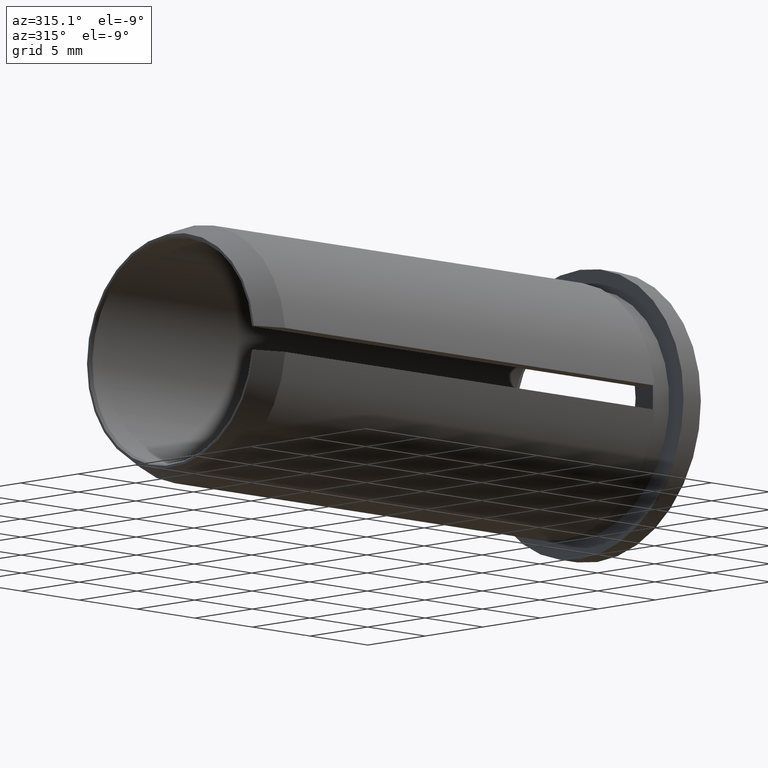
[diagram: clean part render]
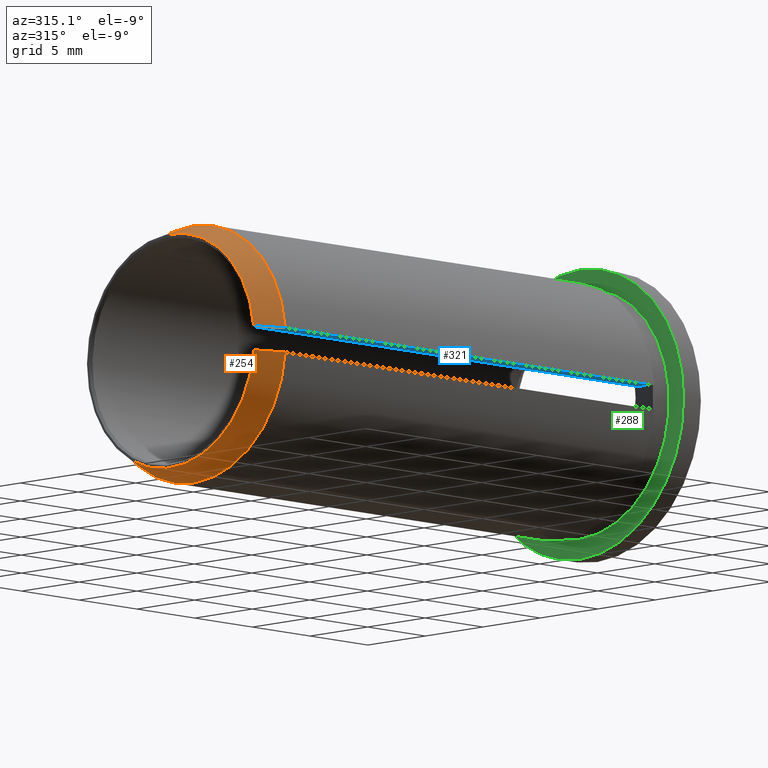
[diagram: same view with three faces highlighted in distinct colors, each labeled with its STEP entity id]
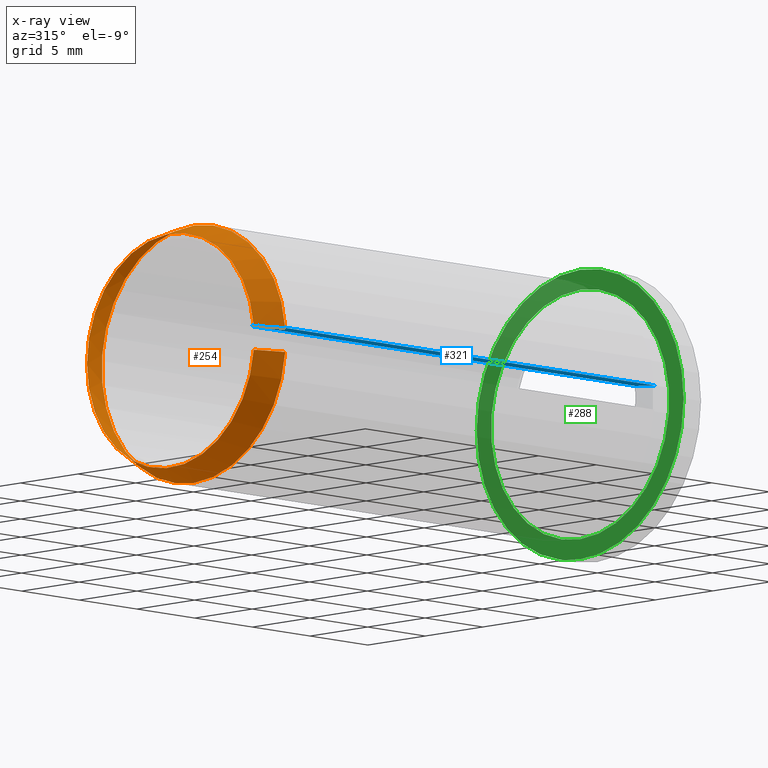
[diagram: x-ray of the same camera — body ghosted, the three highlighted faces saturated]
A machine part, auxiliary view with three faces highlighted in distinct colors.
The next image is the same camera in x-ray (body ghosted, the three faces saturated) — at least one of them is partly hidden behind the body in this view.
Their STEP definitions:

[orange] entity #254 — the highlighted conical surface has half-angle 20 deg.
#5 = ORIENTED_EDGE ( 'NONE', *, *, #322, .F. ) ;
#28 = CARTESIAN_POINT ( 'NONE',  ( -34.99999999999999300, -7.964766161036994400, -0.7500000000000000000 ) ) ;
#36 = AXIS2_PLACEMENT_3D ( 'NONE', #384, #129, #71 ) ;
#40 = VERTEX_POINT ( 'NONE', #174 ) ;
#66 = B_SPLINE_CURVE_WITH_KNOTS ( 'NONE', 3,
 ( #70, #75, #290, #315 ),
 .UNSPECIFIED., .F., .F.,
 ( 4, 4 ),
 ( 0.009711911398750116400, 0.01184148182100318500 ),
 .UNSPECIFIED. ) ;
#70 = CARTESIAN_POINT ( 'NONE',  ( -34.99999999999999300, -7.964766161036994400, 0.7500000000000000000 ) ) ;
#71 = DIRECTION ( 'NONE',  ( 0.0000000000000000000, 0.0000000000000000000, 1.000000000000000000 ) ) ;
#75 = CARTESIAN_POINT ( 'NONE',  ( -35.66670156923833400, -7.721033178614087300, 0.7500000000000000000 ) ) ;
#81 = AXIS2_PLACEMENT_3D ( 'NONE', #139, #253, #355 ) ;
#84 = CIRCLE ( 'NONE', #36, 7.272059531467589500 ) ;
#98 = CARTESIAN_POINT ( 'NONE',  ( -34.99999999999999300, -7.964766161036994400, 0.7500000000000000000 ) ) ;
#101 = EDGE_CURVE ( 'NONE', #40, #202, #316, .T. ) ;
#107 = ORIENTED_EDGE ( 'NONE', *, *, #101, .T. ) ;
#129 = DIRECTION ( 'NONE',  ( -1.000000000000000000, -0.0000000000000000000, -0.0000000000000000000 ) ) ;
#134 = CIRCLE ( 'NONE', #81, 7.999999999999996400 ) ;
#139 = CARTESIAN_POINT ( 'NONE',  ( -34.99999999999999300, 0.0000000000000000000, 0.0000000000000000000 ) ) ;
#150 = CARTESIAN_POINT ( 'NONE',  ( -37.00000000000000000, -7.233280709968928700, -0.7500000000000000000 ) ) ;
#152 = CARTESIAN_POINT ( 'NONE',  ( -37.00000000000000000, -7.233280709968928700, -0.7500000000000000000 ) ) ;
#164 = DIRECTION ( 'NONE',  ( 1.000000000000000000, 0.0000000000000000000, 0.0000000000000000000 ) ) ;
#173 = FACE_OUTER_BOUND ( 'NONE', #260, .T. ) ;
#174 = CARTESIAN_POINT ( 'NONE',  ( -34.99999999999999300, -7.964766161036994400, -0.7500000000000000000 ) ) ;
#202 = VERTEX_POINT ( 'NONE', #150 ) ;
#221 = EDGE_CURVE ( 'NONE', #359, #40, #134, .T. ) ;
#225 = ORIENTED_EDGE ( 'NONE', *, *, #277, .F. ) ;
#234 = VERTEX_POINT ( 'NONE', #374 ) ;
#239 = CARTESIAN_POINT ( 'NONE',  ( -35.66670156923833400, -7.721033178614087300, -0.7500000000000000000 ) ) ;
#253 = DIRECTION ( 'NONE',  ( -1.000000000000000000, -0.0000000000000000000, -0.0000000000000000000 ) ) ;
#254 = ADVANCED_FACE ( 'NONE', ( #173 ), #364, .T. ) ;
#260 = EDGE_LOOP ( 'NONE', ( #283, #107, #5, #225 ) ) ;
#275 = CARTESIAN_POINT ( 'NONE',  ( -36.33337186691171900, -7.477214302540265800, -0.7500000000000000000 ) ) ;
#277 = EDGE_CURVE ( 'NONE', #359, #234, #66, .T. ) ;
#283 = ORIENTED_EDGE ( 'NONE', *, *, #221, .T. ) ;
#286 = AXIS2_PLACEMENT_3D ( 'NONE', #413, #164, #353 ) ;
#290 = CARTESIAN_POINT ( 'NONE',  ( -36.33337186691171900, -7.477214302540265800, 0.7500000000000000000 ) ) ;
#315 = CARTESIAN_POINT ( 'NONE',  ( -37.00000000000000000, -7.233280709968928700, 0.7500000000000000000 ) ) ;
#316 = B_SPLINE_CURVE_WITH_KNOTS ( 'NONE', 3,
 ( #28, #239, #275, #152 ),
 .UNSPECIFIED., .F., .F.,
 ( 4, 4 ),
 ( 0.009711911398750116400, 0.01184148182100318500 ),
 .UNSPECIFIED. ) ;
#322 = EDGE_CURVE ( 'NONE', #234, #202, #84, .T. ) ;
#353 = DIRECTION ( 'NONE',  ( 0.0000000000000000000, 0.0000000000000000000, -1.000000000000000000 ) ) ;
#355 = DIRECTION ( 'NONE',  ( 0.0000000000000000000, 0.0000000000000000000, 1.000000000000000000 ) ) ;
#359 = VERTEX_POINT ( 'NONE', #98 ) ;
#364 = CONICAL_SURFACE ( 'NONE', #286, 7.999999999999996400, 0.3490658503988667300 ) ;
#374 = CARTESIAN_POINT ( 'NONE',  ( -37.00000000000000000, -7.233280709968928700, 0.7500000000000000000 ) ) ;
#384 = CARTESIAN_POINT ( 'NONE',  ( -37.00000000000000000, 0.0000000000000000000, 0.0000000000000000000 ) ) ;
#413 = CARTESIAN_POINT ( 'NONE',  ( -34.99999999999999300, 0.0000000000000000000, 0.0000000000000000000 ) ) ;

[blue] entity #321 — the highlighted planar face has unit normal (-0, 0, -1).
#6 = DIRECTION ( 'NONE',  ( -0.0000000000000000000, 0.0000000000000000000, -1.000000000000000000 ) ) ;
#20 = VERTEX_POINT ( 'NONE', #89 ) ;
#22 = DIRECTION ( 'NONE',  ( 0.0000000000000000000, -1.000000000000000000, 0.0000000000000000000 ) ) ;
#47 = EDGE_CURVE ( 'NONE', #234, #240, #200, .T. ) ;
#57 = CARTESIAN_POINT ( 'NONE',  ( -36.79999999999999700, -6.959705453537528000, 0.7500000000000000000 ) ) ;
#61 = CARTESIAN_POINT ( 'NONE',  ( -3.000000000000002700, -7.964766161036996200, 0.7500000000000000000 ) ) ;
#63 = DIRECTION ( 'NONE',  ( -1.000000000000000000, 0.0000000000000000000, 0.0000000000000000000 ) ) ;
#64 = B_SPLINE_CURVE_WITH_KNOTS ( 'NONE', 3,
 ( #243, #311, #382, #57 ),
 .UNSPECIFIED., .F., .F.,
 ( 4, 4 ),
 ( 0.008159521160765015300, 0.008390790686471119900 ),
 .UNSPECIFIED. ) ;
#66 = B_SPLINE_CURVE_WITH_KNOTS ( 'NONE', 3,
 ( #70, #75, #290, #315 ),
 .UNSPECIFIED., .F., .F.,
 ( 4, 4 ),
 ( 0.009711911398750116400, 0.01184148182100318500 ),
 .UNSPECIFIED. ) ;
#70 = CARTESIAN_POINT ( 'NONE',  ( -34.99999999999999300, -7.964766161036994400, 0.7500000000000000000 ) ) ;
#75 = CARTESIAN_POINT ( 'NONE',  ( -35.66670156923833400, -7.721033178614087300, 0.7500000000000000000 ) ) ;
#83 = EDGE_CURVE ( 'NONE', #20, #135, #377, .T. ) ;
#86 = VERTEX_POINT ( 'NONE', #340 ) ;
#89 = CARTESIAN_POINT ( 'NONE',  ( -3.000000000000002700, -7.836232103263177400, 0.7500000000000000000 ) ) ;
#91 = EDGE_CURVE ( 'NONE', #240, #86, #64, .T. ) ;
#98 = CARTESIAN_POINT ( 'NONE',  ( -34.99999999999999300, -7.964766161036994400, 0.7500000000000000000 ) ) ;
#103 = ORIENTED_EDGE ( 'NONE', *, *, #133, .T. ) ;
#104 = PLANE ( 'NONE',  #310 ) ;
#112 = LINE ( 'NONE', #123, #282 ) ;
#113 = CARTESIAN_POINT ( 'NONE',  ( -3.696983839633665600, -6.959705453537527100, 0.7500000000000000000 ) ) ;
#114 = CARTESIAN_POINT ( 'NONE',  ( -37.00000000000000000, 7.272059531467589500, 0.7500000000000000000 ) ) ;
#120 = ORIENTED_EDGE ( 'NONE', *, *, #122, .T. ) ;
#122 = EDGE_CURVE ( 'NONE', #135, #359, #112, .T. ) ;
#123 = CARTESIAN_POINT ( 'NONE',  ( -38.58775536857143600, -7.964766161036994400, 0.7500000000000000000 ) ) ;
#124 = CIRCLE ( 'NONE', #318, 31.50000000000000700 ) ;
#133 = EDGE_CURVE ( 'NONE', #86, #394, #291, .T. ) ;
#135 = VERTEX_POINT ( 'NONE', #61 ) ;
#140 = VECTOR ( 'NONE', #22, 1000.000000000000000 ) ;
#153 = CARTESIAN_POINT ( 'NONE',  ( -38.58775536857143600, -6.959705453537528000, 0.7500000000000000000 ) ) ;
#156 = EDGE_CURVE ( 'NONE', #20, #394, #124, .T. ) ;
#165 = VECTOR ( 'NONE', #198, 1000.000000000000000 ) ;
#180 = ORIENTED_EDGE ( 'NONE', *, *, #277, .T. ) ;
#181 = CARTESIAN_POINT ( 'NONE',  ( -3.000000000000000900, 7.750000000000000000, 0.7500000000000000000 ) ) ;
#198 = DIRECTION ( 'NONE',  ( 0.0000000000000000000, 1.000000000000000000, 0.0000000000000000000 ) ) ;
#200 = LINE ( 'NONE', #114, #165 ) ;
#204 = DIRECTION ( 'NONE',  ( 0.0000000000000000000, 0.0000000000000000000, 1.000000000000000000 ) ) ;
#220 = ORIENTED_EDGE ( 'NONE', *, *, #156, .F. ) ;
#234 = VERTEX_POINT ( 'NONE', #374 ) ;
#240 = VERTEX_POINT ( 'NONE', #323 ) ;
#243 = CARTESIAN_POINT ( 'NONE',  ( -37.00000000000000000, -7.075833101979178300, 0.7500000000000000000 ) ) ;
#246 = DIRECTION ( 'NONE',  ( 1.000000000000000000, 0.0000000000000000000, 0.0000000000000000000 ) ) ;
#249 = EDGE_LOOP ( 'NONE', ( #103, #220, #334, #120, #180, #421, #410 ) ) ;
#277 = EDGE_CURVE ( 'NONE', #359, #234, #66, .T. ) ;
#282 = VECTOR ( 'NONE', #380, 1000.000000000000000 ) ;
#290 = CARTESIAN_POINT ( 'NONE',  ( -36.33337186691171900, -7.477214302540265800, 0.7500000000000000000 ) ) ;
#291 = LINE ( 'NONE', #153, #408 ) ;
#292 = DIRECTION ( 'NONE',  ( -1.000000000000000000, 0.0000000000000000000, 0.0000000000000000000 ) ) ;
#310 = AXIS2_PLACEMENT_3D ( 'NONE', #392, #6, #292 ) ;
#311 = CARTESIAN_POINT ( 'NONE',  ( -36.93333177780486700, -7.037126569982963700, 0.7500000000000000000 ) ) ;
#315 = CARTESIAN_POINT ( 'NONE',  ( -37.00000000000000000, -7.233280709968928700, 0.7500000000000000000 ) ) ;
#318 = AXIS2_PLACEMENT_3D ( 'NONE', #376, #204, #63 ) ;
#321 = ADVANCED_FACE ( 'NONE', ( #420 ), #104, .T. ) ;
#323 = CARTESIAN_POINT ( 'NONE',  ( -37.00000000000000000, -7.075833101979178300, 0.7500000000000000000 ) ) ;
#334 = ORIENTED_EDGE ( 'NONE', *, *, #83, .T. ) ;
#340 = CARTESIAN_POINT ( 'NONE',  ( -36.79999999999999700, -6.959705453537528000, 0.7500000000000000000 ) ) ;
#359 = VERTEX_POINT ( 'NONE', #98 ) ;
#374 = CARTESIAN_POINT ( 'NONE',  ( -37.00000000000000000, -7.233280709968928700, 0.7500000000000000000 ) ) ;
#376 = CARTESIAN_POINT ( 'NONE',  ( -27.99999999999999600, -27.00000000000000000, 0.7500000000000000000 ) ) ;
#377 = LINE ( 'NONE', #181, #140 ) ;
#380 = DIRECTION ( 'NONE',  ( -1.000000000000000000, -0.0000000000000000000, -0.0000000000000000000 ) ) ;
#382 = CARTESIAN_POINT ( 'NONE',  ( -36.86666508525750900, -6.998417398494318300, 0.7500000000000000000 ) ) ;
#392 = CARTESIAN_POINT ( 'NONE',  ( -27.99999999999999600, -27.00000000000000000, 0.7500000000000000000 ) ) ;
#394 = VERTEX_POINT ( 'NONE', #113 ) ;
#408 = VECTOR ( 'NONE', #246, 1000.000000000000000 ) ;
#410 = ORIENTED_EDGE ( 'NONE', *, *, #91, .T. ) ;
#420 = FACE_OUTER_BOUND ( 'NONE', #249, .T. ) ;
#421 = ORIENTED_EDGE ( 'NONE', *, *, #47, .T. ) ;

[green] entity #288 — the highlighted planar face has unit normal (1, 0, 0).
#3 = DIRECTION ( 'NONE',  ( 0.0000000000000000000, 0.0000000000000000000, -1.000000000000000000 ) ) ;
#11 = AXIS2_PLACEMENT_3D ( 'NONE', #212, #105, #3 ) ;
#19 = DIRECTION ( 'NONE',  ( -1.000000000000000000, -0.0000000000000000000, -0.0000000000000000000 ) ) ;
#39 = CIRCLE ( 'NONE', #386, 9.000000000000000000 ) ;
#52 = EDGE_LOOP ( 'NONE', ( #162 ) ) ;
#65 = EDGE_CURVE ( 'NONE', #72, #72, #39, .T. ) ;
#72 = VERTEX_POINT ( 'NONE', #195 ) ;
#105 = DIRECTION ( 'NONE',  ( 1.000000000000000000, 0.0000000000000000000, 0.0000000000000000000 ) ) ;
#130 = FACE_OUTER_BOUND ( 'NONE', #175, .T. ) ;
#162 = ORIENTED_EDGE ( 'NONE', *, *, #398, .F. ) ;
#175 = EDGE_LOOP ( 'NONE', ( #308 ) ) ;
#189 = PLANE ( 'NONE',  #11 ) ;
#195 = CARTESIAN_POINT ( 'NONE',  ( -1.500000000000001300, 0.0000000000000000000, 9.000000000000000000 ) ) ;
#196 = CARTESIAN_POINT ( 'NONE',  ( -1.500000000000001300, 0.0000000000000000000, 7.750000000000000000 ) ) ;
#212 = CARTESIAN_POINT ( 'NONE',  ( -1.500000000000000400, 9.000000000000000000, 0.0000000000000000000 ) ) ;
#233 = CIRCLE ( 'NONE', #304, 7.750000000000000000 ) ;
#237 = CARTESIAN_POINT ( 'NONE',  ( -1.500000000000001300, 0.0000000000000000000, 0.0000000000000000000 ) ) ;
#238 = DIRECTION ( 'NONE',  ( 0.0000000000000000000, 0.0000000000000000000, 1.000000000000000000 ) ) ;
#271 = FACE_BOUND ( 'NONE', #52, .T. ) ;
#288 = ADVANCED_FACE ( 'NONE', ( #271, #130 ), #189, .F. ) ;
#298 = DIRECTION ( 'NONE',  ( -1.000000000000000000, -0.0000000000000000000, -0.0000000000000000000 ) ) ;
#304 = AXIS2_PLACEMENT_3D ( 'NONE', #330, #298, #332 ) ;
#308 = ORIENTED_EDGE ( 'NONE', *, *, #65, .T. ) ;
#330 = CARTESIAN_POINT ( 'NONE',  ( -1.500000000000001300, 0.0000000000000000000, 0.0000000000000000000 ) ) ;
#332 = DIRECTION ( 'NONE',  ( 0.0000000000000000000, 0.0000000000000000000, 1.000000000000000000 ) ) ;
#386 = AXIS2_PLACEMENT_3D ( 'NONE', #237, #19, #238 ) ;
#398 = EDGE_CURVE ( 'NONE', #414, #414, #233, .T. ) ;
#414 = VERTEX_POINT ( 'NONE', #196 ) ;